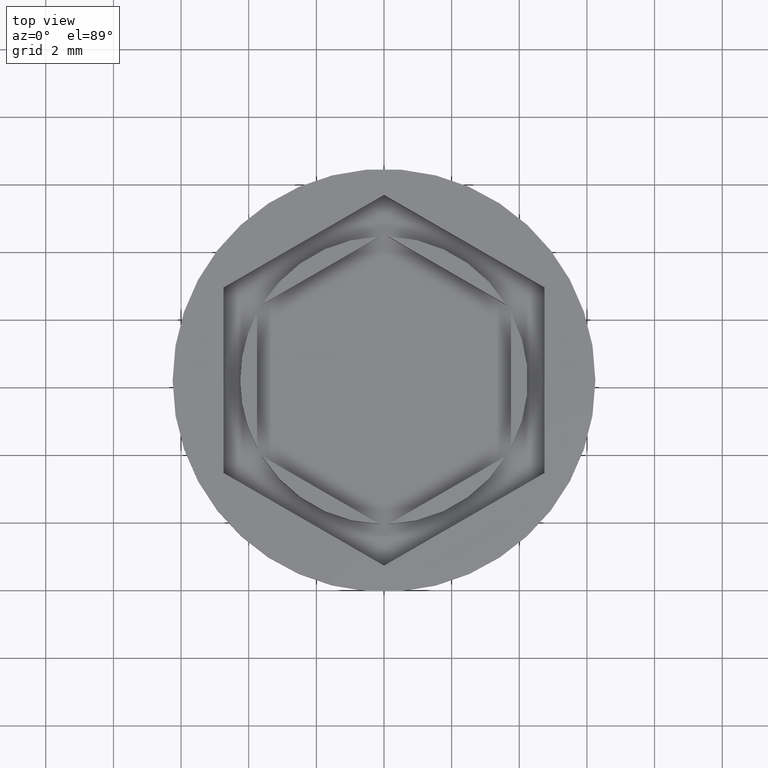
[diagram: clean part render]
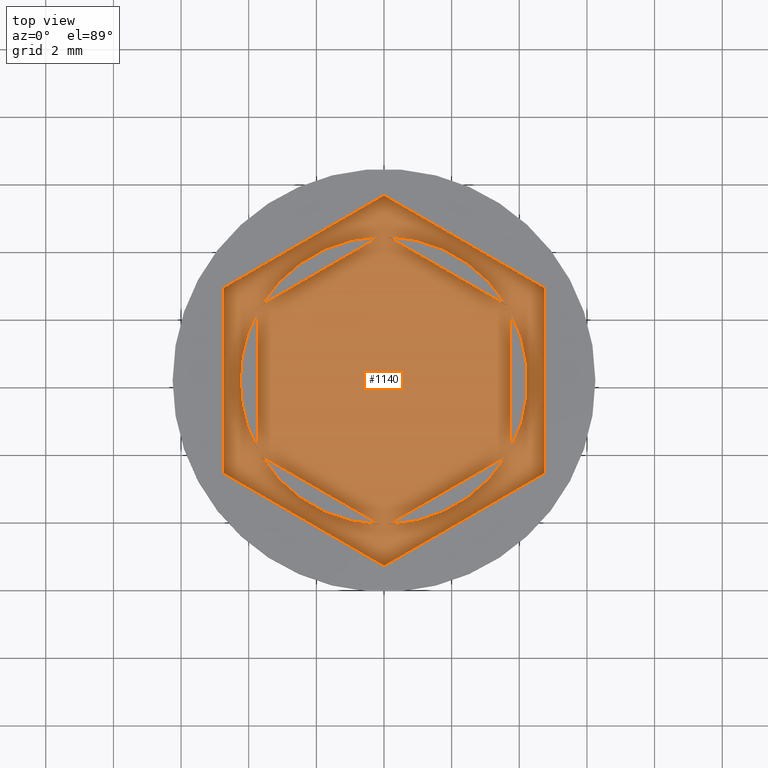
[diagram: same view with one face highlighted and labeled with its STEP entity id]
A machine part, top view. The second image highlights one B-rep face of the part: STEP entity #1140.
In plain terms, the highlighted planar face has unit normal (0, 0, 1).
Its self-contained STEP definition (entity closure, byte-faithful):
#14 = AXIS2_PLACEMENT_3D ( 'NONE', #1775, #1134, #215 ) ;
#59 = CARTESIAN_POINT ( 'NONE',  ( 0.000000000000000000, 0.000000000000000000, -1.000000000000000000 ) ) ;
#66 = PLANE ( 'NONE',  #329 ) ;
#68 = EDGE_CURVE ( 'NONE', #1754, #1109, #1389, .T. ) ;
#80 = EDGE_CURVE ( 'NONE', #572, #589, #1863, .T. ) ;
#105 = CARTESIAN_POINT ( 'NONE',  ( -0.1429491924311236117, -4.247595264191645015, -1.000000000000000888 ) ) ;
#140 = CARTESIAN_POINT ( 'NONE',  ( 3.749999999999999112, -2.165063509461097713, -1.000000000000000888 ) ) ;
#143 = EDGE_LOOP ( 'NONE', ( #914, #840, #942, #193, #205, #1897 ) ) ;
#188 = CARTESIAN_POINT ( 'NONE',  ( -4.750000000000000888, 2.742413778650723000, -1.000000000000000000 ) ) ;
#193 = ORIENTED_EDGE ( 'NONE', *, *, #875, .T. ) ;
#205 = ORIENTED_EDGE ( 'NONE', *, *, #605, .T. ) ;
#206 = CARTESIAN_POINT ( 'NONE',  ( 0.000000000000000000, 0.000000000000000000, -1.000000000000000000 ) ) ;
#212 = LINE ( 'NONE', #1594, #412 ) ;
#215 = DIRECTION ( 'NONE',  ( 1.000000000000000000, 0.000000000000000000, 0.000000000000000000 ) ) ;
#216 = FACE_BOUND ( 'NONE', #953, .T. ) ;
#238 = CARTESIAN_POINT ( 'NONE',  ( 3.997386383800531884E-16, -5.484827557301445999, -1.000000000000000000 ) ) ;
#276 = DIRECTION ( 'NONE',  ( -3.004629197474318063E-16, -1.000000000000000000, 0.000000000000000000 ) ) ;
#299 = DIRECTION ( 'NONE',  ( -0.8660254037844385966, 0.5000000000000001110, 0.000000000000000000 ) ) ;
#316 = DIRECTION ( 'NONE',  ( 0.000000000000000000, 1.000000000000000000, 0.000000000000000000 ) ) ;
#318 = EDGE_CURVE ( 'NONE', #647, #1746, #1765, .T. ) ;
#321 = CARTESIAN_POINT ( 'NONE',  ( -4.750000000000000888, -2.742413778650723000, -1.000000000000000000 ) ) ;
#325 = CARTESIAN_POINT ( 'NONE',  ( -3.750000000000000000, -2.000000000000000444, -1.000000000000000888 ) ) ;
#328 = CARTESIAN_POINT ( 'NONE',  ( 0.000000000000000000, 5.484827557301445999, -1.000000000000000000 ) ) ;
#329 = AXIS2_PLACEMENT_3D ( 'NONE', #692, #1302, #702 ) ;
#349 = DIRECTION ( 'NONE',  ( 1.000000000000000000, 0.000000000000000000, 0.000000000000000000 ) ) ;
#362 = CARTESIAN_POINT ( 'NONE',  ( 0.000000000000000000, 0.000000000000000000, -1.000000000000000000 ) ) ;
#365 = DIRECTION ( 'NONE',  ( 1.000000000000000000, 0.000000000000000000, 0.000000000000000000 ) ) ;
#370 = DIRECTION ( 'NONE',  ( 0.000000000000000000, 0.000000000000000000, 1.000000000000000000 ) ) ;
#392 = DIRECTION ( 'NONE',  ( 0.000000000000000000, 1.000000000000000000, 0.000000000000000000 ) ) ;
#402 = EDGE_CURVE ( 'NONE', #1369, #909, #701, .T. ) ;
#412 = VECTOR ( 'NONE', #1310, 1000.000000000000000 ) ;
#413 = VERTEX_POINT ( 'NONE', #541 ) ;
#433 = ORIENTED_EDGE ( 'NONE', *, *, #1223, .F. ) ;
#437 = ORIENTED_EDGE ( 'NONE', *, *, #1106, .F. ) ;
#438 = LINE ( 'NONE', #1058, #1784 ) ;
#478 = CIRCLE ( 'NONE', #1692, 4.250000000000000000 ) ;
#479 = VECTOR ( 'NONE', #316, 1000.000000000000000 ) ;
#492 = CARTESIAN_POINT ( 'NONE',  ( 3.749999999999999556, -2.000000000000001776, -1.000000000000000888 ) ) ;
#505 = EDGE_CURVE ( 'NONE', #1019, #800, #1808, .T. ) ;
#540 = VERTEX_POINT ( 'NONE', #1301 ) ;
#541 = CARTESIAN_POINT ( 'NONE',  ( -4.250000000000000000, 0.000000000000000000, -1.000000000000000000 ) ) ;
#542 = EDGE_CURVE ( 'NONE', #589, #929, #678, .T. ) ;
#553 = AXIS2_PLACEMENT_3D ( 'NONE', #1888, #1747, #349 ) ;
#561 = EDGE_CURVE ( 'NONE', #1933, #413, #1913, .T. ) ;
#563 = CARTESIAN_POINT ( 'NONE',  ( -0.1429491924311210305, 4.247595264191645015, -1.000000000000000888 ) ) ;
#572 = VERTEX_POINT ( 'NONE', #1739 ) ;
#589 = VERTEX_POINT ( 'NONE', #188 ) ;
#598 = LINE ( 'NONE', #140, #971 ) ;
#599 = ORIENTED_EDGE ( 'NONE', *, *, #1373, .F. ) ;
#605 = EDGE_CURVE ( 'NONE', #767, #1754, #1171, .T. ) ;
#612 = ORIENTED_EDGE ( 'NONE', *, *, #1977, .F. ) ;
#633 = LINE ( 'NONE', #321, #1629 ) ;
#634 = ORIENTED_EDGE ( 'NONE', *, *, #1118, .F. ) ;
#647 = VERTEX_POINT ( 'NONE', #563 ) ;
#672 = CARTESIAN_POINT ( 'NONE',  ( -4.750000000000000888, 2.742413778650723000, -1.000000000000000000 ) ) ;
#678 = LINE ( 'NONE', #672, #1221 ) ;
#692 = CARTESIAN_POINT ( 'NONE',  ( 0.000000000000000000, 0.000000000000000000, -1.000000000000000000 ) ) ;
#695 = DIRECTION ( 'NONE',  ( 1.000000000000000000, 0.000000000000000000, 0.000000000000000000 ) ) ;
#701 = LINE ( 'NONE', #1318, #1787 ) ;
#702 = DIRECTION ( 'NONE',  ( 1.000000000000000000, 0.000000000000000000, -0.000000000000000000 ) ) ;
#720 = DIRECTION ( 'NONE',  ( 1.000000000000000000, 0.000000000000000000, 0.000000000000000000 ) ) ;
#721 = VECTOR ( 'NONE', #392, 1000.000000000000000 ) ;
#745 = CARTESIAN_POINT ( 'NONE',  ( 0.000000000000000000, 0.000000000000000000, -1.000000000000000000 ) ) ;
#755 = ORIENTED_EDGE ( 'NONE', *, *, #318, .F. ) ;
#767 = VERTEX_POINT ( 'NONE', #238 ) ;
#793 = VECTOR ( 'NONE', #1307, 1000.000000000000000 ) ;
#794 = LINE ( 'NONE', #1236, #1018 ) ;
#796 = CARTESIAN_POINT ( 'NONE',  ( -3.750000000000000000, 2.000000000000000444, -1.000000000000000888 ) ) ;
#800 = VERTEX_POINT ( 'NONE', #1162 ) ;
#811 = VERTEX_POINT ( 'NONE', #1035 ) ;
#819 = DIRECTION ( 'NONE',  ( 0.8660254037844388186, -0.4999999999999998335, 0.000000000000000000 ) ) ;
#827 = ORIENTED_EDGE ( 'NONE', *, *, #1603, .F. ) ;
#829 = DIRECTION ( 'NONE',  ( 0.000000000000000000, 0.000000000000000000, 1.000000000000000000 ) ) ;
#832 = DIRECTION ( 'NONE',  ( -0.8660254037844387076, 0.4999999999999998890, 0.000000000000000000 ) ) ;
#840 = ORIENTED_EDGE ( 'NONE', *, *, #80, .T. ) ;
#852 = FACE_BOUND ( 'NONE', #1570, .T. ) ;
#866 = CARTESIAN_POINT ( 'NONE',  ( 3.997386383800531884E-16, -5.484827557301445999, -1.000000000000000000 ) ) ;
#869 = VECTOR ( 'NONE', #1853, 1000.000000000000227 ) ;
#875 = EDGE_CURVE ( 'NONE', #929, #767, #633, .T. ) ;
#909 = VERTEX_POINT ( 'NONE', #1094 ) ;
#914 = ORIENTED_EDGE ( 'NONE', *, *, #963, .T. ) ;
#929 = VERTEX_POINT ( 'NONE', #1839 ) ;
#942 = ORIENTED_EDGE ( 'NONE', *, *, #542, .T. ) ;
#953 = EDGE_LOOP ( 'NONE', ( #966, #827, #433 ) ) ;
#963 = EDGE_CURVE ( 'NONE', #1109, #572, #1895, .T. ) ;
#964 = EDGE_CURVE ( 'NONE', #540, #1587, #478, .T. ) ;
#966 = ORIENTED_EDGE ( 'NONE', *, *, #561, .F. ) ;
#967 = FACE_BOUND ( 'NONE', #1830, .T. ) ;
#971 = VECTOR ( 'NONE', #276, 1000.000000000000000 ) ;
#977 = DIRECTION ( 'NONE',  ( 1.000000000000000000, 0.000000000000000000, 0.000000000000000000 ) ) ;
#1018 = VECTOR ( 'NONE', #819, 999.9999999999998863 ) ;
#1019 = VERTEX_POINT ( 'NONE', #492 ) ;
#1035 = CARTESIAN_POINT ( 'NONE',  ( 3.607050807568877193, 2.247595264191646791, -1.000000000000000888 ) ) ;
#1048 = VERTEX_POINT ( 'NONE', #1079 ) ;
#1058 = CARTESIAN_POINT ( 'NONE',  ( -3.750000000000000000, -2.165063509461096825, -1.000000000000000888 ) ) ;
#1062 = EDGE_LOOP ( 'NONE', ( #1924, #599 ) ) ;
#1079 = CARTESIAN_POINT ( 'NONE',  ( 0.1429491924311221129, 4.247595264191645903, -1.000000000000000888 ) ) ;
#1094 = CARTESIAN_POINT ( 'NONE',  ( 0.1429491924311227513, -4.247595264191645903, -1.000000000000000888 ) ) ;
#1106 = EDGE_CURVE ( 'NONE', #1587, #540, #438, .T. ) ;
#1109 = VERTEX_POINT ( 'NONE', #1574 ) ;
#1118 = EDGE_CURVE ( 'NONE', #1746, #647, #212, .T. ) ;
#1122 = FACE_OUTER_BOUND ( 'NONE', #143, .T. ) ;
#1123 = CARTESIAN_POINT ( 'NONE',  ( 0.000000000000000000, 0.000000000000000000, -1.000000000000000000 ) ) ;
#1134 = DIRECTION ( 'NONE',  ( 0.000000000000000000, 0.000000000000000000, 1.000000000000000000 ) ) ;
#1140 = ADVANCED_FACE ( 'NONE', ( #1449, #967, #852, #1892, #216, #1468, #1122 ), #66, .T. ) ;
#1144 = CARTESIAN_POINT ( 'NONE',  ( -3.750000000000000000, 2.165063509461096380, -1.000000000000000888 ) ) ;
#1162 = CARTESIAN_POINT ( 'NONE',  ( 3.750000000000000444, 1.999999999999999112, -1.000000000000000888 ) ) ;
#1171 = LINE ( 'NONE', #866, #793 ) ;
#1185 = AXIS2_PLACEMENT_3D ( 'NONE', #362, #370, #977 ) ;
#1199 = ORIENTED_EDGE ( 'NONE', *, *, #402, .F. ) ;
#1221 = VECTOR ( 'NONE', #1286, 1000.000000000000000 ) ;
#1223 = EDGE_CURVE ( 'NONE', #413, #1403, #1359, .T. ) ;
#1228 = CARTESIAN_POINT ( 'NONE',  ( 4.750000000000000888, -2.742413778650722556, -1.000000000000000000 ) ) ;
#1236 = CARTESIAN_POINT ( 'NONE',  ( 3.750000000000000444, 2.165063509461096825, -1.000000000000000888 ) ) ;
#1253 = CIRCLE ( 'NONE', #553, 4.250000000000000000 ) ;
#1259 = CIRCLE ( 'NONE', #1845, 4.250000000000000000 ) ;
#1286 = DIRECTION ( 'NONE',  ( 0.000000000000000000, -1.000000000000000000, 0.000000000000000000 ) ) ;
#1301 = CARTESIAN_POINT ( 'NONE',  ( -3.607050807568877637, -2.247595264191645015, -1.000000000000000888 ) ) ;
#1302 = DIRECTION ( 'NONE',  ( 0.000000000000000000, 0.000000000000000000, 1.000000000000000000 ) ) ;
#1307 = DIRECTION ( 'NONE',  ( 0.8660254037844385966, 0.5000000000000001110, 0.000000000000000000 ) ) ;
#1310 = DIRECTION ( 'NONE',  ( 0.8660254037844387076, 0.4999999999999999445, -0.000000000000000000 ) ) ;
#1318 = CARTESIAN_POINT ( 'NONE',  ( -6.505213034913026604E-16, -4.330127018922193649, -1.000000000000000888 ) ) ;
#1357 = VECTOR ( 'NONE', #832, 1000.000000000000114 ) ;
#1359 = CIRCLE ( 'NONE', #1620, 4.250000000000000000 ) ;
#1369 = VERTEX_POINT ( 'NONE', #1708 ) ;
#1373 = EDGE_CURVE ( 'NONE', #1048, #811, #794, .T. ) ;
#1374 = EDGE_LOOP ( 'NONE', ( #1753, #437 ) ) ;
#1376 = CARTESIAN_POINT ( 'NONE',  ( 4.750000000000000888, -2.742413778650722556, -1.000000000000000000 ) ) ;
#1389 = LINE ( 'NONE', #1228, #479 ) ;
#1403 = VERTEX_POINT ( 'NONE', #325 ) ;
#1449 = FACE_BOUND ( 'NONE', #1062, .T. ) ;
#1452 = EDGE_CURVE ( 'NONE', #811, #1048, #1253, .T. ) ;
#1456 = EDGE_LOOP ( 'NONE', ( #755, #634 ) ) ;
#1468 = FACE_BOUND ( 'NONE', #1456, .T. ) ;
#1482 = DIRECTION ( 'NONE',  ( -0.8660254037844388186, -0.4999999999999998335, 0.000000000000000000 ) ) ;
#1525 = AXIS2_PLACEMENT_3D ( 'NONE', #59, #829, #1900 ) ;
#1567 = DIRECTION ( 'NONE',  ( 0.8660254037844385966, -0.5000000000000000000, 0.000000000000000000 ) ) ;
#1570 = EDGE_LOOP ( 'NONE', ( #612, #1199 ) ) ;
#1574 = CARTESIAN_POINT ( 'NONE',  ( 4.750000000000000888, 2.742413778650723888, -1.000000000000000000 ) ) ;
#1587 = VERTEX_POINT ( 'NONE', #105 ) ;
#1594 = CARTESIAN_POINT ( 'NONE',  ( 0.000000000000000000, 4.330127018922192761, -1.000000000000000888 ) ) ;
#1603 = EDGE_CURVE ( 'NONE', #1403, #1933, #1942, .T. ) ;
#1607 = ORIENTED_EDGE ( 'NONE', *, *, #1777, .F. ) ;
#1620 = AXIS2_PLACEMENT_3D ( 'NONE', #745, #1668, #720 ) ;
#1629 = VECTOR ( 'NONE', #1567, 1000.000000000000227 ) ;
#1634 = ORIENTED_EDGE ( 'NONE', *, *, #505, .F. ) ;
#1635 = CARTESIAN_POINT ( 'NONE',  ( 4.750000000000000888, 2.742413778650723888, -1.000000000000000000 ) ) ;
#1668 = DIRECTION ( 'NONE',  ( 0.000000000000000000, 0.000000000000000000, 1.000000000000000000 ) ) ;
#1692 = AXIS2_PLACEMENT_3D ( 'NONE', #206, #1925, #695 ) ;
#1704 = CARTESIAN_POINT ( 'NONE',  ( -3.607050807568877637, 2.247595264191644127, -1.000000000000000888 ) ) ;
#1708 = CARTESIAN_POINT ( 'NONE',  ( 3.607050807568876749, -2.247595264191647679, -1.000000000000000888 ) ) ;
#1739 = CARTESIAN_POINT ( 'NONE',  ( 0.000000000000000000, 5.484827557301445999, -1.000000000000000000 ) ) ;
#1746 = VERTEX_POINT ( 'NONE', #1704 ) ;
#1747 = DIRECTION ( 'NONE',  ( 0.000000000000000000, 0.000000000000000000, 1.000000000000000000 ) ) ;
#1753 = ORIENTED_EDGE ( 'NONE', *, *, #964, .F. ) ;
#1754 = VERTEX_POINT ( 'NONE', #1376 ) ;
#1763 = DIRECTION ( 'NONE',  ( 0.000000000000000000, 0.000000000000000000, 1.000000000000000000 ) ) ;
#1765 = CIRCLE ( 'NONE', #1185, 4.250000000000000000 ) ;
#1775 = CARTESIAN_POINT ( 'NONE',  ( 0.000000000000000000, 0.000000000000000000, -1.000000000000000000 ) ) ;
#1777 = EDGE_CURVE ( 'NONE', #800, #1019, #598, .T. ) ;
#1784 = VECTOR ( 'NONE', #299, 1000.000000000000000 ) ;
#1787 = VECTOR ( 'NONE', #1482, 999.9999999999998863 ) ;
#1808 = CIRCLE ( 'NONE', #1525, 4.250000000000000000 ) ;
#1830 = EDGE_LOOP ( 'NONE', ( #1634, #1607 ) ) ;
#1839 = CARTESIAN_POINT ( 'NONE',  ( -4.750000000000000888, -2.742413778650723000, -1.000000000000000000 ) ) ;
#1845 = AXIS2_PLACEMENT_3D ( 'NONE', #1123, #1763, #365 ) ;
#1853 = DIRECTION ( 'NONE',  ( -0.8660254037844385966, -0.5000000000000000000, 0.000000000000000000 ) ) ;
#1863 = LINE ( 'NONE', #328, #869 ) ;
#1888 = CARTESIAN_POINT ( 'NONE',  ( 0.000000000000000000, 0.000000000000000000, -1.000000000000000000 ) ) ;
#1892 = FACE_BOUND ( 'NONE', #1374, .T. ) ;
#1895 = LINE ( 'NONE', #1635, #1357 ) ;
#1897 = ORIENTED_EDGE ( 'NONE', *, *, #68, .T. ) ;
#1900 = DIRECTION ( 'NONE',  ( 1.000000000000000000, 0.000000000000000000, 0.000000000000000000 ) ) ;
#1913 = CIRCLE ( 'NONE', #14, 4.250000000000000000 ) ;
#1924 = ORIENTED_EDGE ( 'NONE', *, *, #1452, .F. ) ;
#1925 = DIRECTION ( 'NONE',  ( 0.000000000000000000, 0.000000000000000000, 1.000000000000000000 ) ) ;
#1933 = VERTEX_POINT ( 'NONE', #796 ) ;
#1942 = LINE ( 'NONE', #1144, #721 ) ;
#1977 = EDGE_CURVE ( 'NONE', #909, #1369, #1259, .T. ) ;